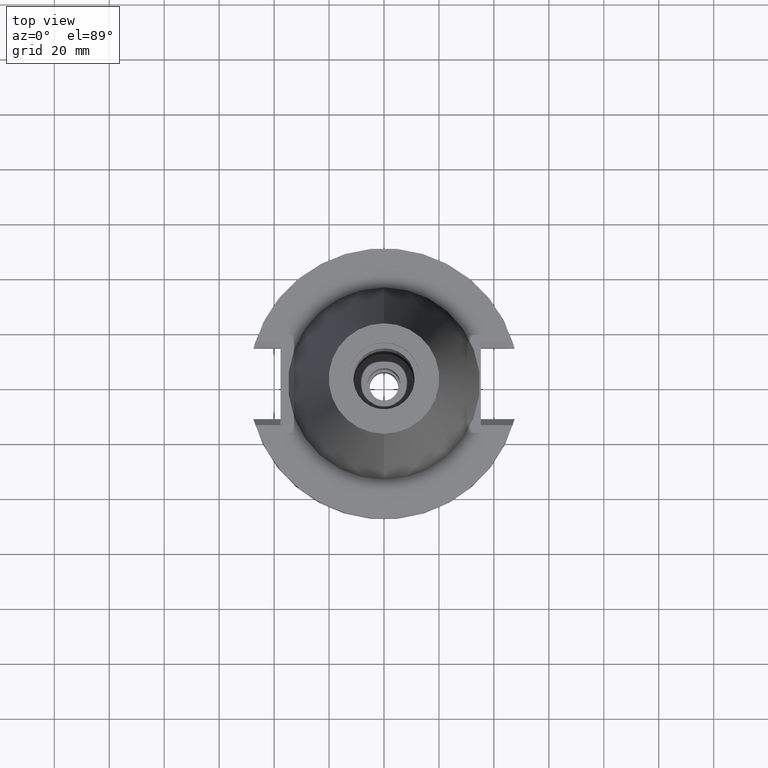
[diagram: clean part render]
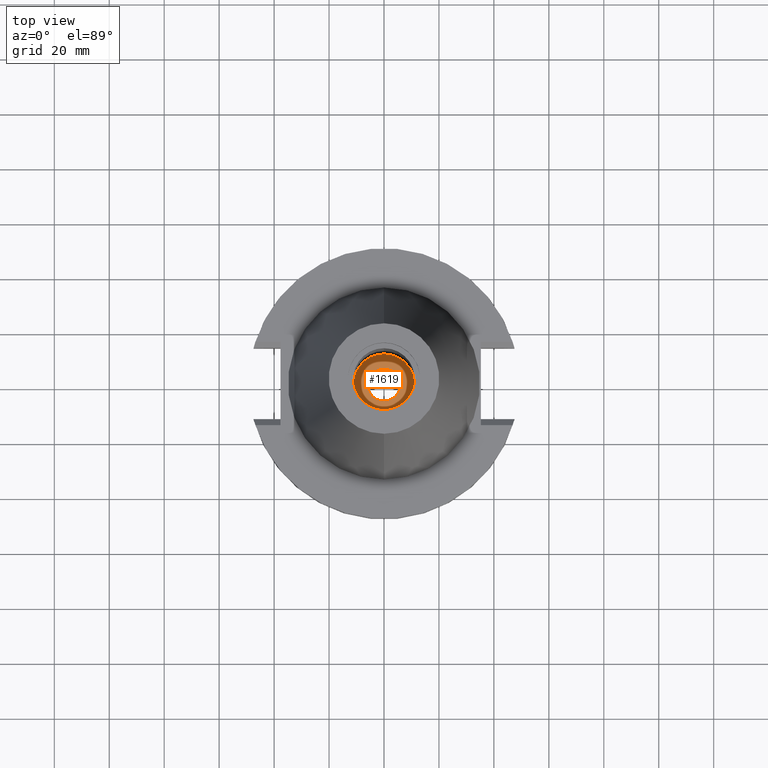
[diagram: same view with one face highlighted and labeled with its STEP entity id]
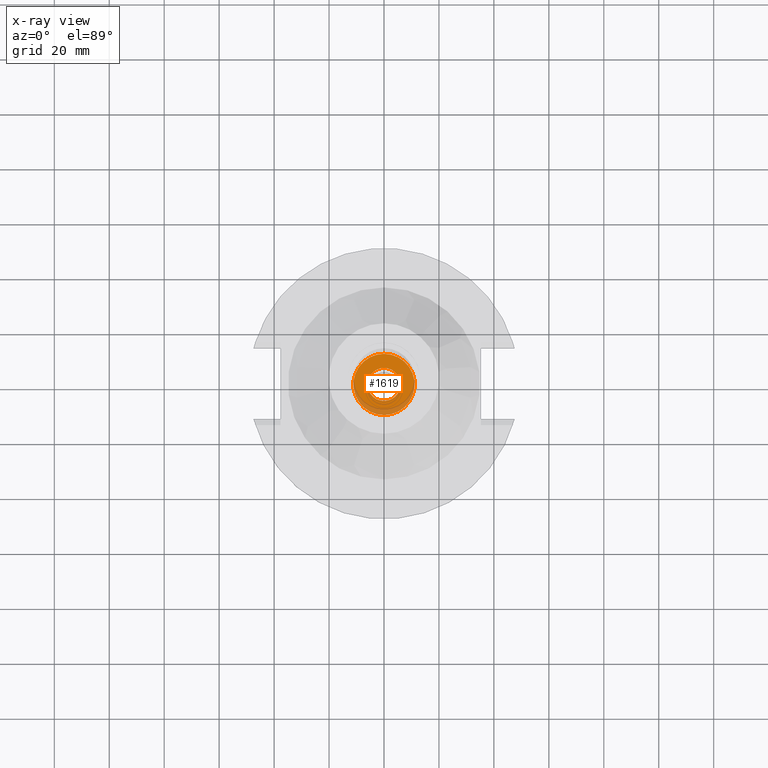
[diagram: x-ray of the same camera — body ghosted, the highlighted face saturated]
A machine part, top view. The second image highlights one B-rep face of the part: STEP entity #1619.
The next image is the same camera in x-ray: the body ghosted, the highlighted face saturated — about 17% of this face is hidden behind the body in this view.
In plain terms, the highlighted planar face has unit normal (0, 0, -1).
Its self-contained STEP definition (entity closure, byte-faithful):
#22 = DIRECTION ( 'NONE',  ( 0.0000000000000000000, 0.0000000000000000000, -1.000000000000000000 ) ) ;
#34 = EDGE_CURVE ( 'NONE', #78, #691, #1464, .T. ) ;
#78 = VERTEX_POINT ( 'NONE', #212 ) ;
#162 = CIRCLE ( 'NONE', #3007, 11.15000000000000036 ) ;
#191 = EDGE_CURVE ( 'NONE', #2854, #1384, #162, .T. ) ;
#212 = CARTESIAN_POINT ( 'NONE',  ( 0.0000000000000000000, 6.000000000000000000, -23.40000000000000213 ) ) ;
#253 = DIRECTION ( 'NONE',  ( 0.0000000000000000000, 0.0000000000000000000, 1.000000000000000000 ) ) ;
#303 = FACE_BOUND ( 'NONE', #2586, .T. ) ;
#520 = DIRECTION ( 'NONE',  ( 0.0000000000000000000, 1.000000000000000000, 0.0000000000000000000 ) ) ;
#691 = VERTEX_POINT ( 'NONE', #2871 ) ;
#825 = CARTESIAN_POINT ( 'NONE',  ( 0.0000000000000000000, 2.602741842227999566E-14, -23.40000000000000213 ) ) ;
#885 = ORIENTED_EDGE ( 'NONE', *, *, #3081, .F. ) ;
#949 = DIRECTION ( 'NONE',  ( 0.0000000000000000000, 1.000000000000000000, 0.0000000000000000000 ) ) ;
#976 = DIRECTION ( 'NONE',  ( 0.0000000000000000000, 0.0000000000000000000, -1.000000000000000000 ) ) ;
#1024 = DIRECTION ( 'NONE',  ( 0.0000000000000000000, -1.000000000000000000, 0.0000000000000000000 ) ) ;
#1054 = CARTESIAN_POINT ( 'NONE',  ( 0.0000000000000000000, 0.0000000000000000000, -23.40000000000000213 ) ) ;
#1384 = VERTEX_POINT ( 'NONE', #2221 ) ;
#1464 = CIRCLE ( 'NONE', #2628, 6.000000000000000000 ) ;
#1619 = ADVANCED_FACE ( 'NONE', ( #2368, #303 ), #2135, .F. ) ;
#1789 = CIRCLE ( 'NONE', #2531, 11.15000000000000036 ) ;
#1831 = DIRECTION ( 'NONE',  ( 0.0000000000000000000, 0.0000000000000000000, 1.000000000000000000 ) ) ;
#1886 = CIRCLE ( 'NONE', #2747, 6.000000000000000000 ) ;
#1960 = ORIENTED_EDGE ( 'NONE', *, *, #34, .F. ) ;
#2135 = PLANE ( 'NONE',  #2148 ) ;
#2148 = AXIS2_PLACEMENT_3D ( 'NONE', #1054, #22, #2613 ) ;
#2221 = CARTESIAN_POINT ( 'NONE',  ( 0.0000000000000000000, -11.15000000000000036, -23.40000000000000213 ) ) ;
#2293 = CARTESIAN_POINT ( 'NONE',  ( 0.0000000000000000000, 2.602741842227999566E-14, -23.40000000000000213 ) ) ;
#2368 = FACE_OUTER_BOUND ( 'NONE', #2929, .T. ) ;
#2370 = DIRECTION ( 'NONE',  ( 0.0000000000000000000, -1.000000000000000000, 0.0000000000000000000 ) ) ;
#2523 = CARTESIAN_POINT ( 'NONE',  ( 0.0000000000000000000, 2.602741842227999566E-14, -23.40000000000000213 ) ) ;
#2531 = AXIS2_PLACEMENT_3D ( 'NONE', #2523, #976, #1024 ) ;
#2586 = EDGE_LOOP ( 'NONE', ( #1960, #2667 ) ) ;
#2613 = DIRECTION ( 'NONE',  ( 0.0000000000000000000, -1.000000000000000000, 0.0000000000000000000 ) ) ;
#2628 = AXIS2_PLACEMENT_3D ( 'NONE', #3032, #253, #520 ) ;
#2667 = ORIENTED_EDGE ( 'NONE', *, *, #3260, .F. ) ;
#2747 = AXIS2_PLACEMENT_3D ( 'NONE', #825, #1831, #2370 ) ;
#2854 = VERTEX_POINT ( 'NONE', #3208 ) ;
#2871 = CARTESIAN_POINT ( 'NONE',  ( 0.0000000000000000000, -6.000000000000000000, -23.40000000000000213 ) ) ;
#2929 = EDGE_LOOP ( 'NONE', ( #2942, #885 ) ) ;
#2942 = ORIENTED_EDGE ( 'NONE', *, *, #191, .F. ) ;
#2968 = DIRECTION ( 'NONE',  ( 0.0000000000000000000, 0.0000000000000000000, -1.000000000000000000 ) ) ;
#3007 = AXIS2_PLACEMENT_3D ( 'NONE', #2293, #2968, #949 ) ;
#3032 = CARTESIAN_POINT ( 'NONE',  ( 0.0000000000000000000, 2.602741842227999566E-14, -23.40000000000000213 ) ) ;
#3081 = EDGE_CURVE ( 'NONE', #1384, #2854, #1789, .T. ) ;
#3208 = CARTESIAN_POINT ( 'NONE',  ( 0.0000000000000000000, 11.15000000000000036, -23.40000000000000213 ) ) ;
#3260 = EDGE_CURVE ( 'NONE', #691, #78, #1886, .T. ) ;